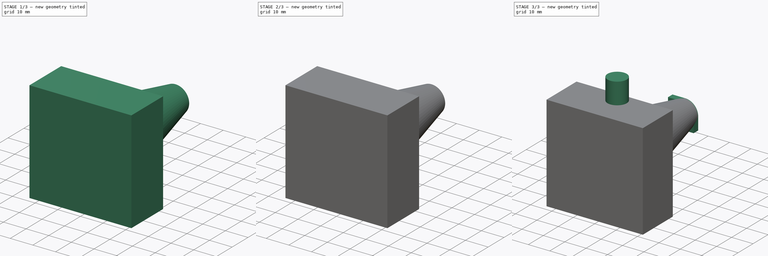
[diagram: build sequence overview — one tinted view per stage of 3, left to right]
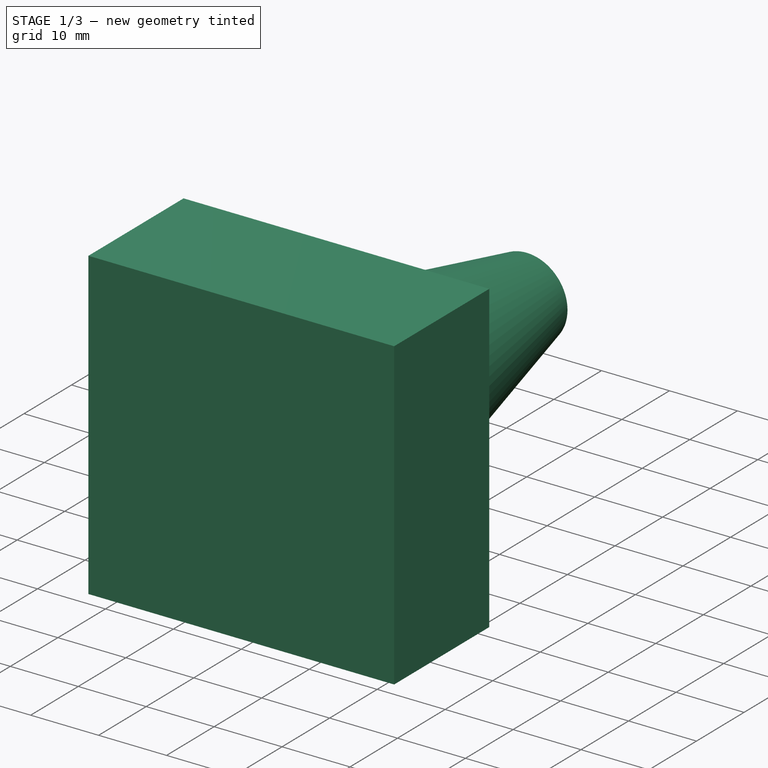
[diagram: stage 1 of 3 — iso view after this stage's code; geometry added in this stage tinted green]
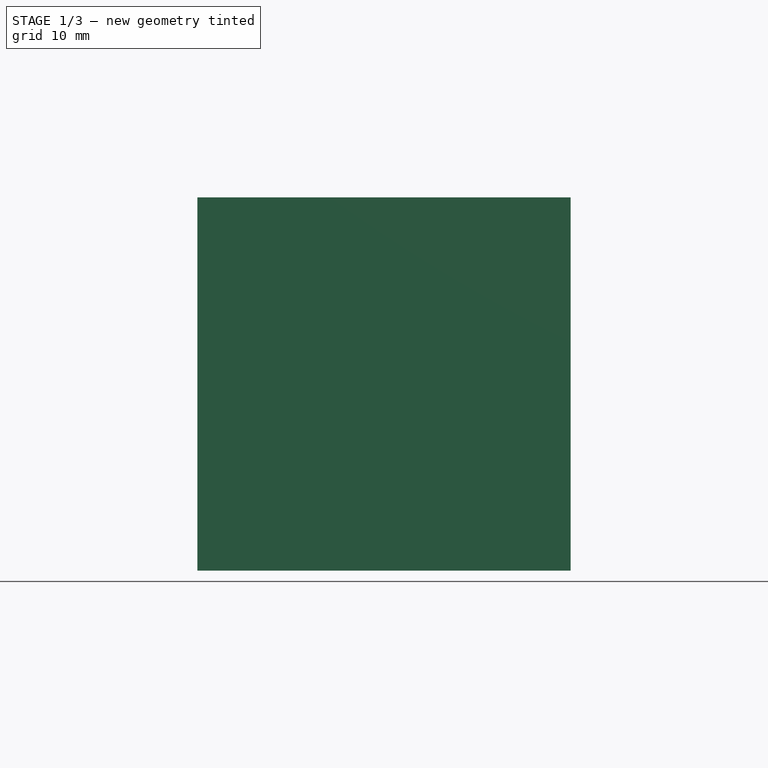
[diagram: stage 1 of 3 — front view after this stage's code; geometry added in this stage tinted green]
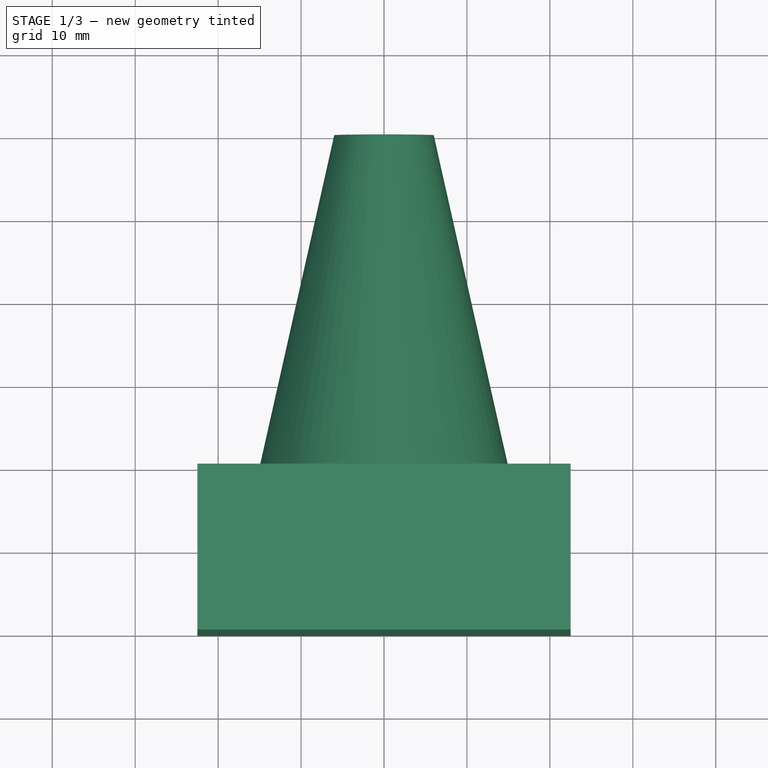
[diagram: stage 1 of 3 — top view after this stage's code; geometry added in this stage tinted green]
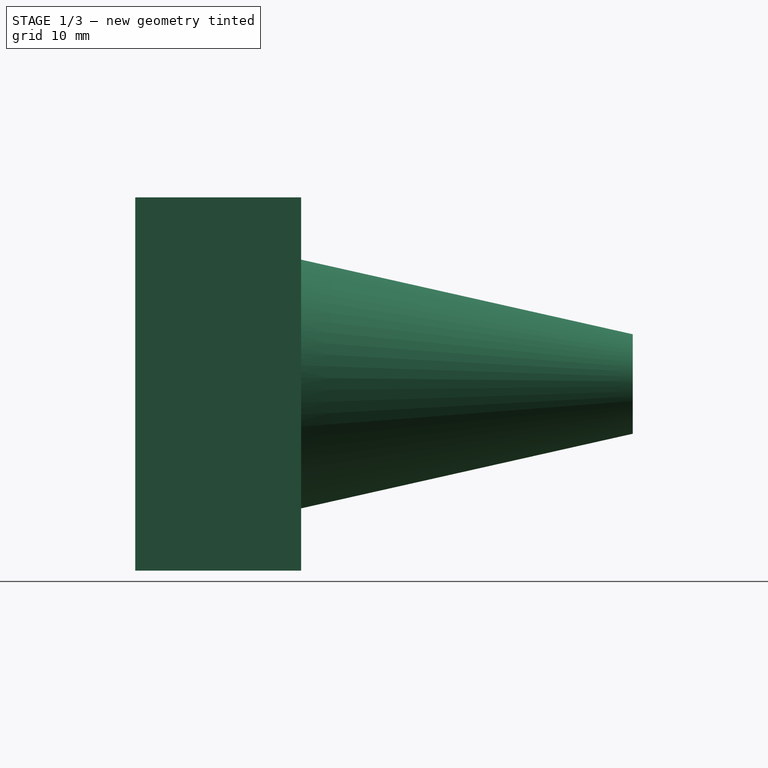
[diagram: stage 1 of 3 — right view after this stage's code; geometry added in this stage tinted green]
FCSTD DOCUMENT  (FreeCAD 0.21R30246 (Git))
Label: Conic_Sphere_Holder_9mm
License: All rights reserved
LicenseURL: http://en.wikipedia.org/wiki/All_rights_reserved
objects: Sketcher::SketchObject×5, PartDesign::Pad×3, PartDesign::Revolution×1, PartDesign::Pocket×1, PartDesign::Body×1
note: 16 computed .brp shape members not serialized (recipe doc carries the construction recipe); baked Part::Feature solids carry a one-line shape summary decoded from their .brp

FEATURE [Sketcher::SketchObject] Sketch
  FullyConstrained = true
  MapMode = 5
  Support = -> [XY_Plane]
  sketch-geometry (6):
    g0: LineSegment StartX=-15 StartY=0 StartZ=0 EndX=-6 EndY=40 EndZ=0
    g1: LineSegment StartX=-6 StartY=40 StartZ=0 EndX=-5.5 EndY=40 EndZ=0
    g2: LineSegment StartX=-5.5 StartY=40 StartZ=0 EndX=-5.725 EndY=39 EndZ=0
    g3: LineSegment StartX=-5.725 StartY=39 StartZ=0 EndX=-4.725 EndY=39 EndZ=0
    g4: LineSegment StartX=-4.725 StartY=39 StartZ=0 EndX=-13 EndY=0 EndZ=0
    g5: LineSegment StartX=-13 StartY=0 StartZ=0 EndX=-15 EndY=0 EndZ=0
  constraints (18):
    c: PointOnObject(g0,g-1)
    c: DistanceX(g0,g-1) = 6
    c: DistanceX(g0,g-1) = 15
    c: DistanceY(g-1,g0) = 40
    c: Coincident(g1,g0)
    c: Coincident(g2,g1)
    c: Coincident(g3,g2)
    c: Horizontal(g3)
    c: Coincident(g4,g3)
    c: PointOnObject(g4,g-1)
    c: Coincident(g5,g4)
    c: Coincident(g5,g0)
    c: DistanceX(g5,g5) = 2
    c: Horizontal(g1)
    c: DistanceX(g1,g1) = 0.5
    c: Parallel(g2,g0)
    c: DistanceY(g2,g2) = 1
    c: DistanceX(g3,g3) = 1
FEATURE [PartDesign::Revolution] Revolution
  Angle = 360
  Axis = (0,1,0)
  Base = (0,0,0)
  Profile = -> Sketch
  ReferenceAxis = -> Sketch [V_Axis]
FEATURE [Sketcher::SketchObject] Sketch001
  FullyConstrained = true
  MapMode = 5
  Placement = pos=(0,0,0) rot=(1,0,0;1.5708rad)
  Support = -> [Revolution]
  sketch-geometry (4):
    g0: LineSegment StartX=-22.5 StartY=22.5 StartZ=0 EndX=22.5 EndY=22.5 EndZ=0
    g1: LineSegment StartX=22.5 StartY=22.5 StartZ=0 EndX=22.5 EndY=-22.5 EndZ=0
    g2: LineSegment StartX=22.5 StartY=-22.5 StartZ=0 EndX=-22.5 EndY=-22.5 EndZ=0
    g3: LineSegment StartX=-22.5 StartY=-22.5 StartZ=0 EndX=-22.5 EndY=22.5 EndZ=0
  constraints (10):
    c: Coincident(g0,g1)
    c: Coincident(g1,g2)
    c: Coincident(g2,g3)
    c: Coincident(g3,g0)
    c: Horizontal(g2)
    c: Vertical(g1)
    c: DistanceX(g0,g0) = 45
    c: DistanceY(g3,g3) = 45
    c: Symmetric(g0,g0,g-2)
    c: Symmetric(g0,g2,g-1)
FEATURE [PartDesign::Pad] Pad
  BaseFeature = -> Revolution
  Direction = (0,-1,2e-16)
  Length = 20
  Length2 = 10
  Profile = -> Sketch001
  ReferenceAxis = -> Sketch001 [N_Axis]
  Type = 0
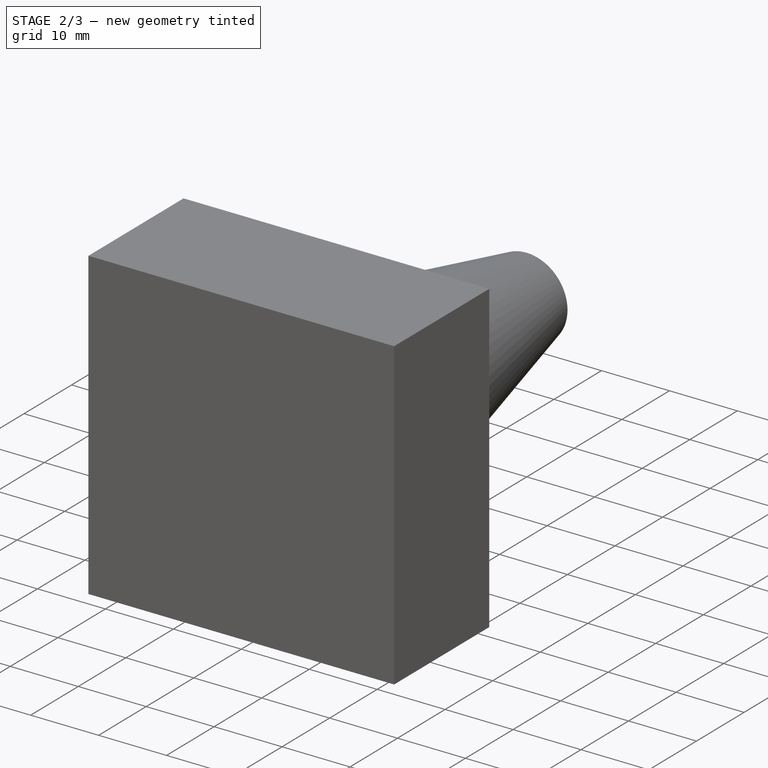
[diagram: stage 2 of 3 — iso view after this stage's code; geometry added in this stage tinted green]
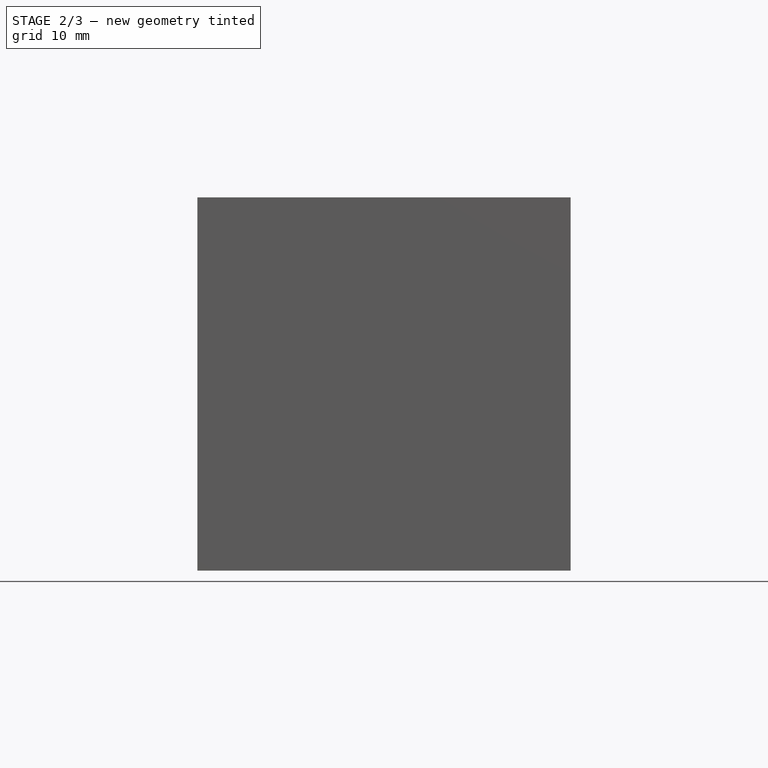
[diagram: stage 2 of 3 — front view after this stage's code; geometry added in this stage tinted green]
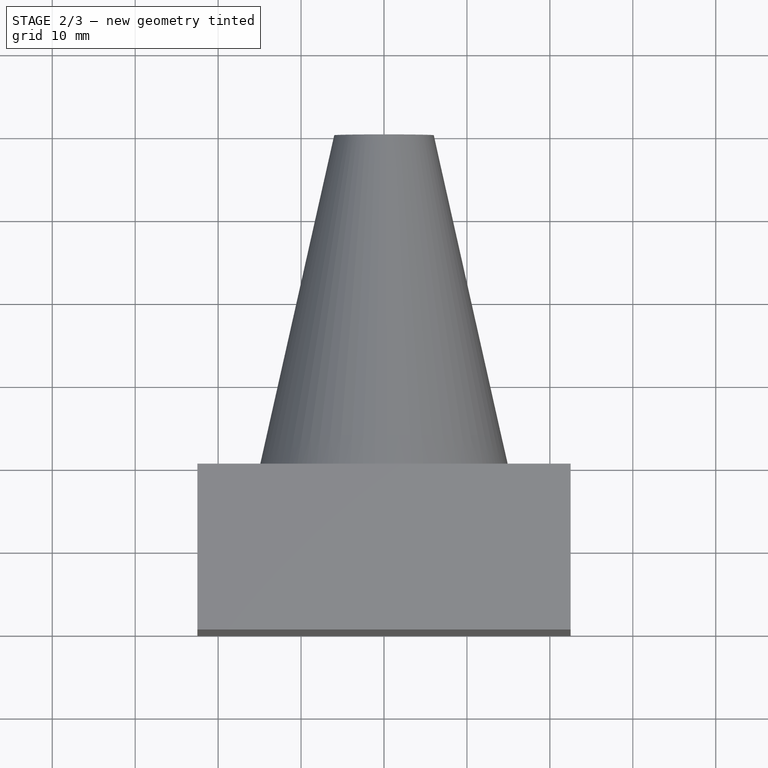
[diagram: stage 2 of 3 — top view after this stage's code; geometry added in this stage tinted green]
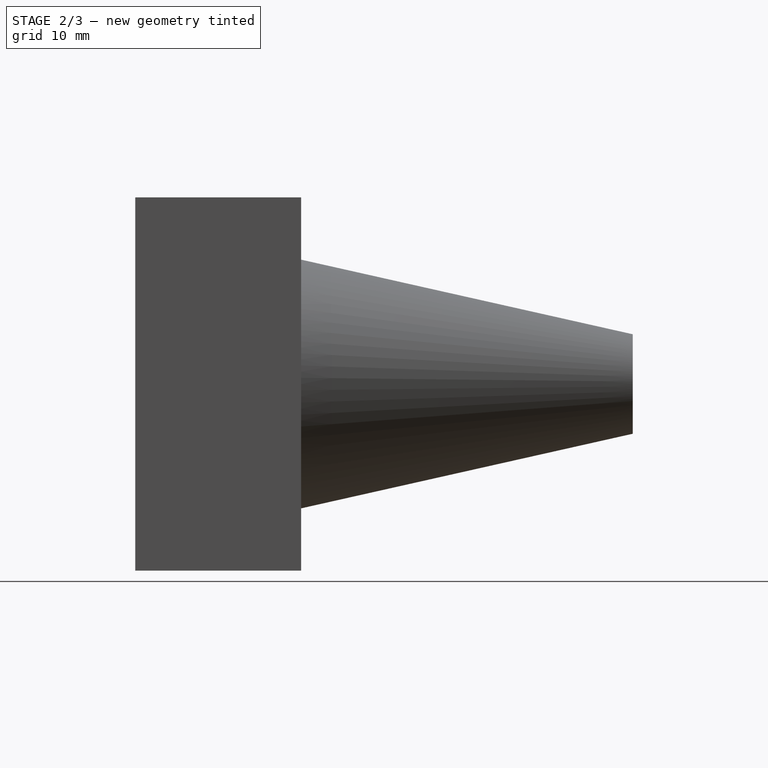
[diagram: stage 2 of 3 — right view after this stage's code; geometry added in this stage tinted green]
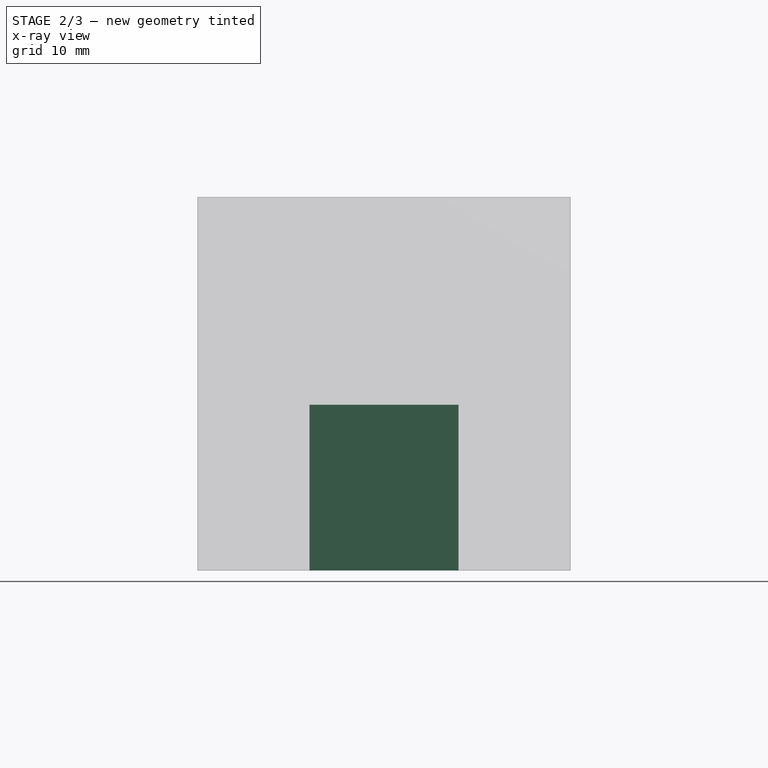
[diagram: stage 2 of 3 — x-ray composite at the front view; earlier geometry ghosted, this stage's added geometry solid]
FEATURE [Sketcher::SketchObject] Sketch002
  FullyConstrained = true
  MapMode = 5
  Placement = pos=(0,-5e-15,-22.5) rot=(1,0,0;3.14159rad)
  Support = -> [Pad]
  sketch-geometry (4):
    g0: LineSegment StartX=-9 StartY=13 StartZ=0 EndX=9 EndY=13 EndZ=0
    g1: LineSegment StartX=9 StartY=13 StartZ=0 EndX=9 EndY=7 EndZ=0
    g2: LineSegment StartX=9 StartY=7 StartZ=0 EndX=-9 EndY=7 EndZ=0
    g3: LineSegment StartX=-9 StartY=7 StartZ=0 EndX=-9 EndY=13 EndZ=0
  constraints (11):
    c: Coincident(g0,g1)
    c: Coincident(g1,g2)
    c: Coincident(g2,g3)
    c: Coincident(g3,g0)
    c: Horizontal(g2)
    c: Vertical(g1)
    c: Vertical(g3)
    c: DistanceX(g0,g0) = 18
    c: DistanceY(g3,g3) = 6
    c: Symmetric(g0,g0,g-2)
    c: DistanceY(g-1,g2) = 7
FEATURE [PartDesign::Pocket] Pocket
  BaseFeature = -> Pad
  Direction = (0,2e-16,1)
  Length = 20
  Length2 = 5
  Profile = -> Sketch002
  ReferenceAxis = -> Sketch002 [N_Axis]
  Type = 0
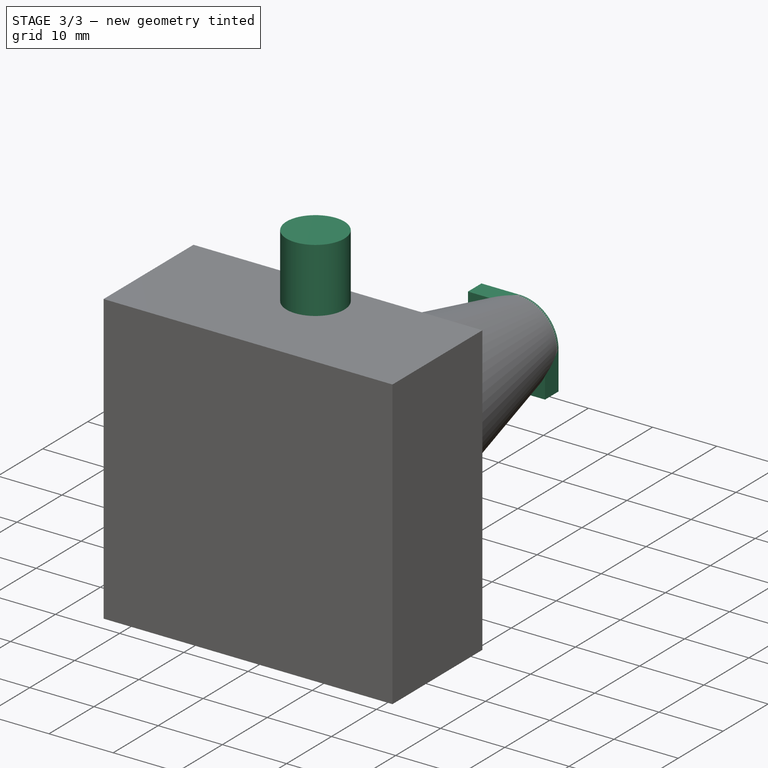
[diagram: stage 3 of 3 — iso view after this stage's code; geometry added in this stage tinted green]
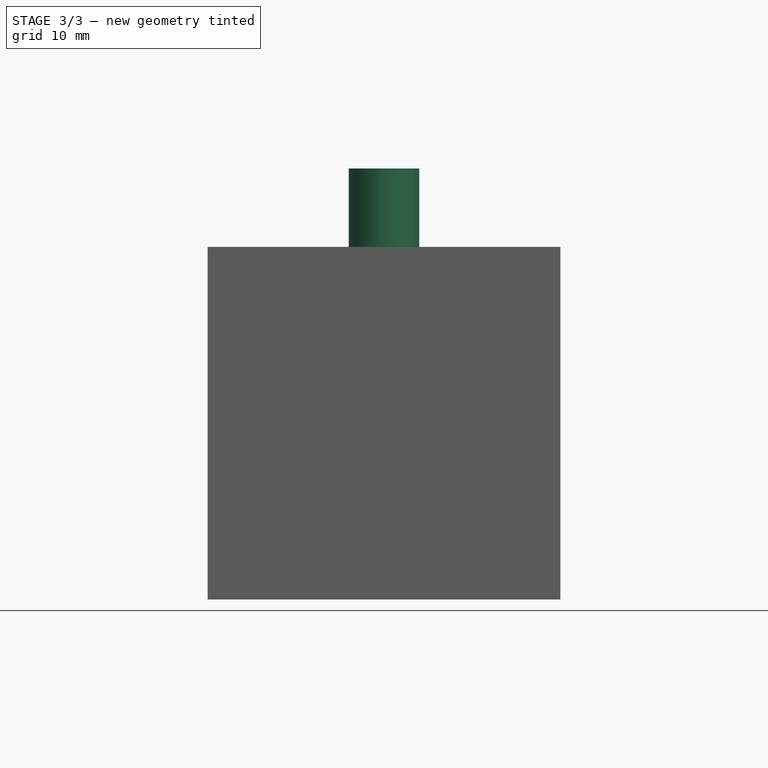
[diagram: stage 3 of 3 — front view after this stage's code; geometry added in this stage tinted green]
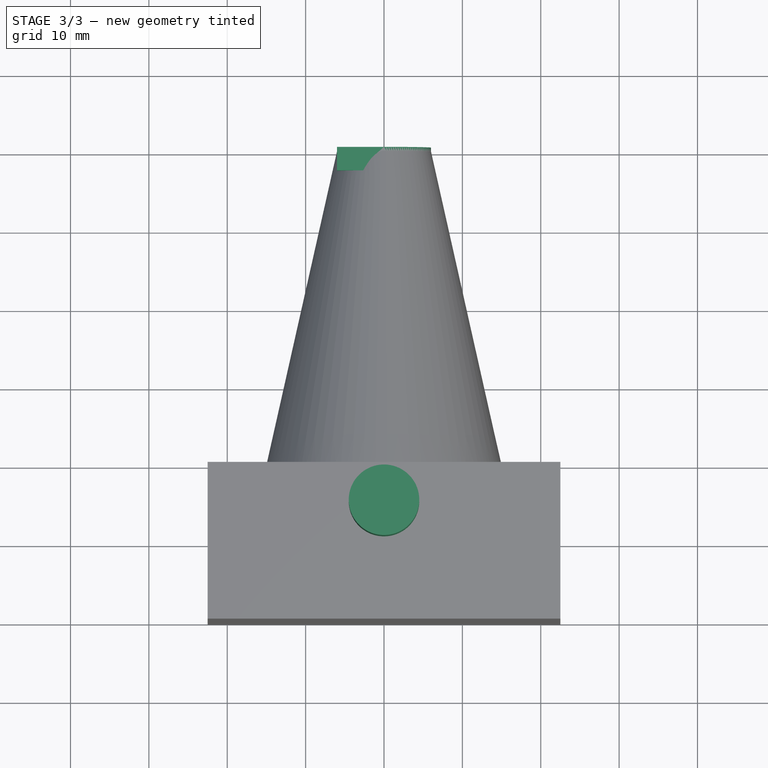
[diagram: stage 3 of 3 — top view after this stage's code; geometry added in this stage tinted green]
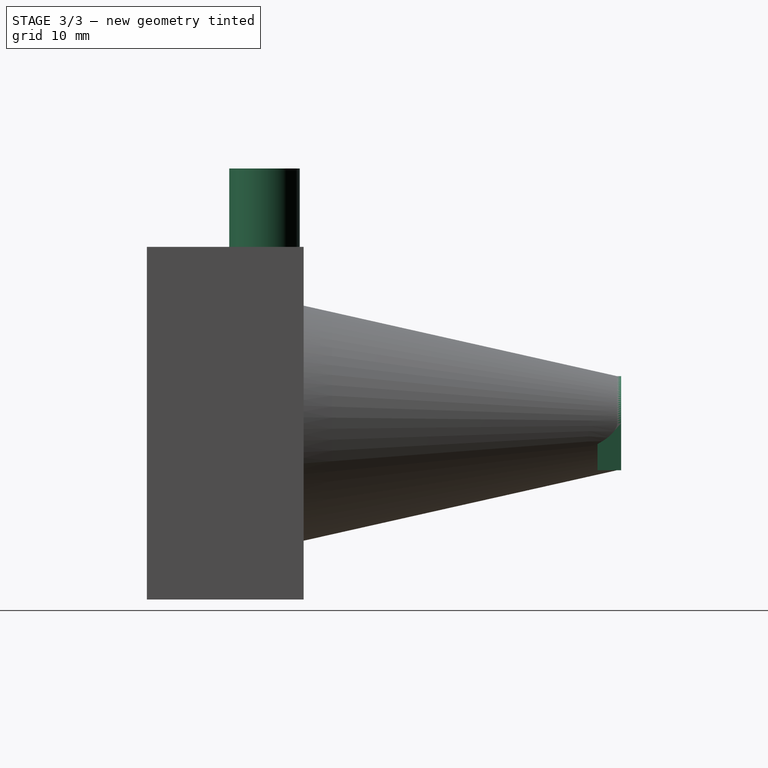
[diagram: stage 3 of 3 — right view after this stage's code; geometry added in this stage tinted green]
FEATURE [Sketcher::SketchObject] Sketch003
  FullyConstrained = true
  MapMode = 5
  Placement = pos=(0,5e-15,22.5) rot=(0,0,1;0rad)
  Support = -> [Pocket]
  sketch-geometry (1):
    g0: Circle CenterX=0 CenterY=-5 CenterZ=0 NormalX=0 NormalY=0 NormalZ=1 AngleXU=0 Radius=4.5
  constraints (3):
    c: PointOnObject(g0,g-2)
    c: Diameter(g0) = 9
    c: DistanceY(g0,g-1) = 5
FEATURE [PartDesign::Pad] Pad001
  BaseFeature = -> Pocket
  Direction = (0,2e-16,1)
  Length = 10
  Length2 = 10
  Profile = -> Sketch003
  ReferenceAxis = -> Sketch003 [N_Axis]
  Type = 0
FEATURE [Sketcher::SketchObject] Sketch004
  FullyConstrained = true
  MapMode = 5
  Placement = pos=(0,39,0) rot=(0,0.707107,0.707107;3.14159rad)
  Support = -> [Pad001]
  sketch-geometry (7):
    g0: LineSegment StartX=4e-16 StartY=6 StartZ=0 EndX=6 EndY=6 EndZ=0
    g1: LineSegment StartX=6 StartY=6 StartZ=0 EndX=6 EndY=1.66303e-11 EndZ=0
    g2: LineSegment StartX=-9.40108e-11 StartY=-6 StartZ=0 EndX=-6 EndY=-6 EndZ=0
    g3: LineSegment StartX=-6 StartY=-6 StartZ=0 EndX=-6 EndY=0 EndZ=0
    g4: ArcOfCircle CenterX=0 CenterY=-9e-16 CenterZ=0 NormalX=0 NormalY=0 NormalZ=1 AngleXU=0 Radius=6 StartAngle=1.5708 EndAngle=3.14159
    g5: ArcOfCircle CenterX=-9.40097e-11 CenterY=2.8137e-12 CenterZ=0 NormalX=0 NormalY=0 NormalZ=1 AngleXU=0 Radius=6 StartAngle=4.71239 EndAngle=6.28319
    g6: Circle CenterX=0 CenterY=-9e-16 CenterZ=0 NormalX=0 NormalY=0 NormalZ=1 AngleXU=0 Radius=5.5
  constraints (18):
    c: Coincident(g0,g1)
    c: Coincident(g2,g3)
    c: Horizontal(g0)
    c: Horizontal(g2)
    c: Vertical(g1)
    c: Vertical(g3)
    c: Tangent(g3,g4) = 1.5708
    c: Tangent(g0,g4) = 1.5708
    c: Tangent(g1,g5) = 1.5708
    c: Tangent(g2,g5) = 1.5708
    c: Equal(g5,g4)
    c: Diameter(g5) = 12
    c: DistanceX(g2,g0) = 12
    c: DistanceX(g-1,g0) = 6
    c: DistanceY(g-1,g0) = 6
    c: DistanceY(g2,g-1) = 6
    c: Coincident(g6,g4)
    c: Diameter(g6) = 11
FEATURE [PartDesign::Pad] Pad002
  BaseFeature = -> Pad001
  Direction = (0,1,-2e-16)
  Length = 3
  Length2 = 10
  Midplane = true
  Profile = -> Sketch004
  ReferenceAxis = -> Sketch004 [N_Axis]
  Type = 0
FEATURE [PartDesign::Body] Body
  Group = -> [Sketch,Revolution,Sketch001,Pad,Sketch002,Pocket,Sketch003,Pad001,Sketch004,Pad002]
  Origin = -> Origin
  Tip = -> Pad002
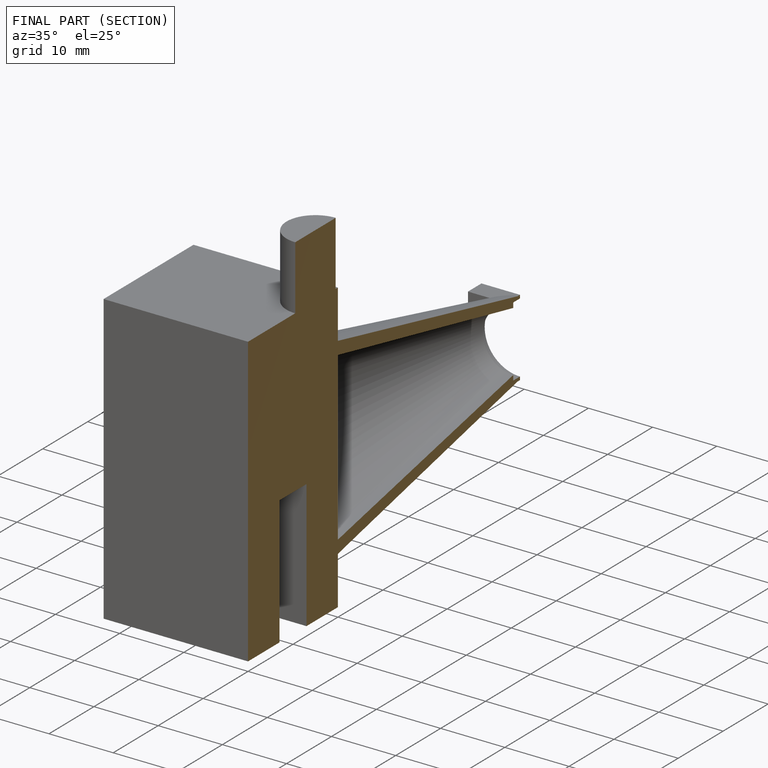
[diagram: finished part — half-section view (interior)]
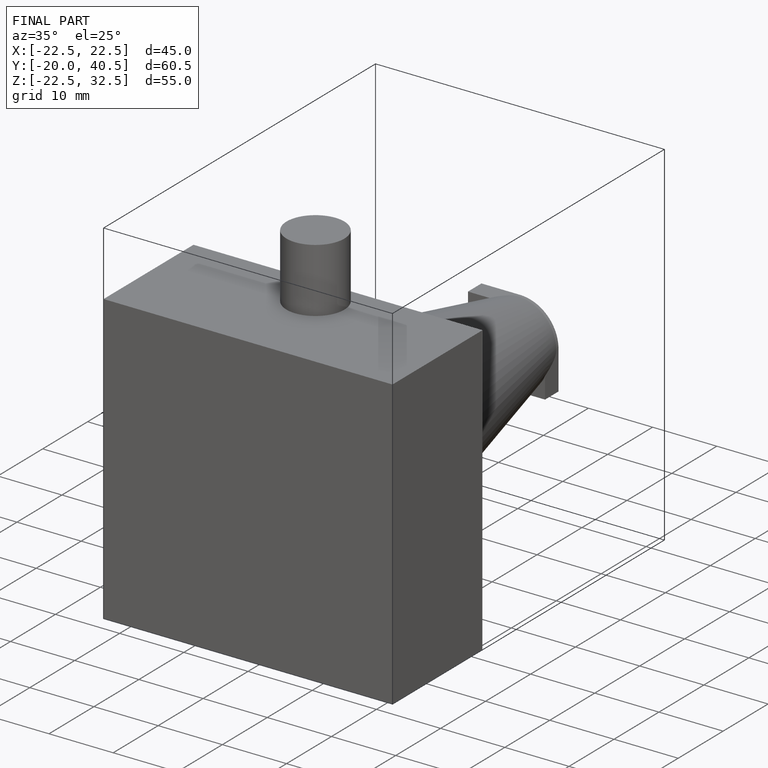
[diagram: finished part — iso view with bounding-box wireframe]
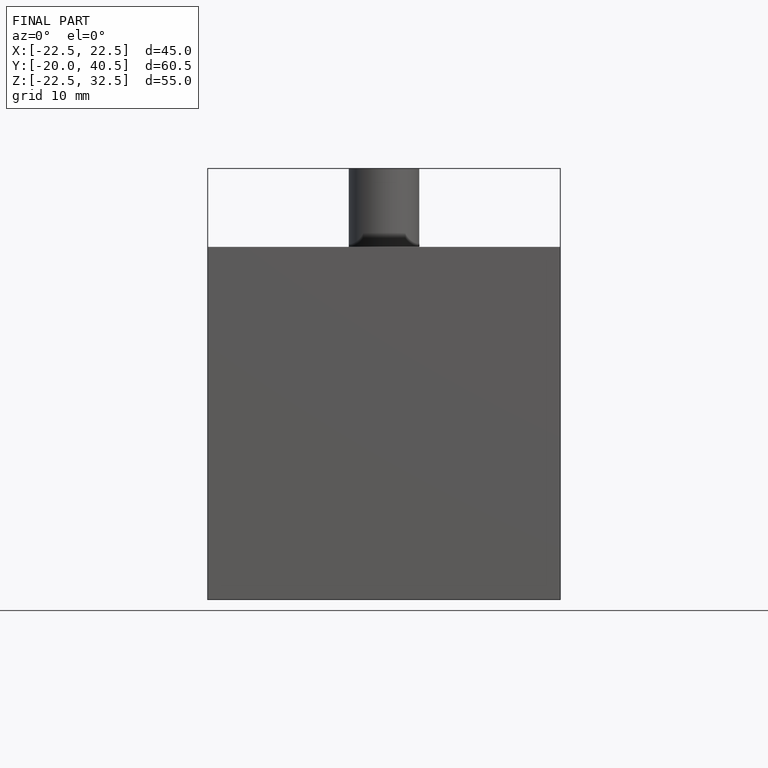
[diagram: finished part — front view with bounding-box wireframe]
